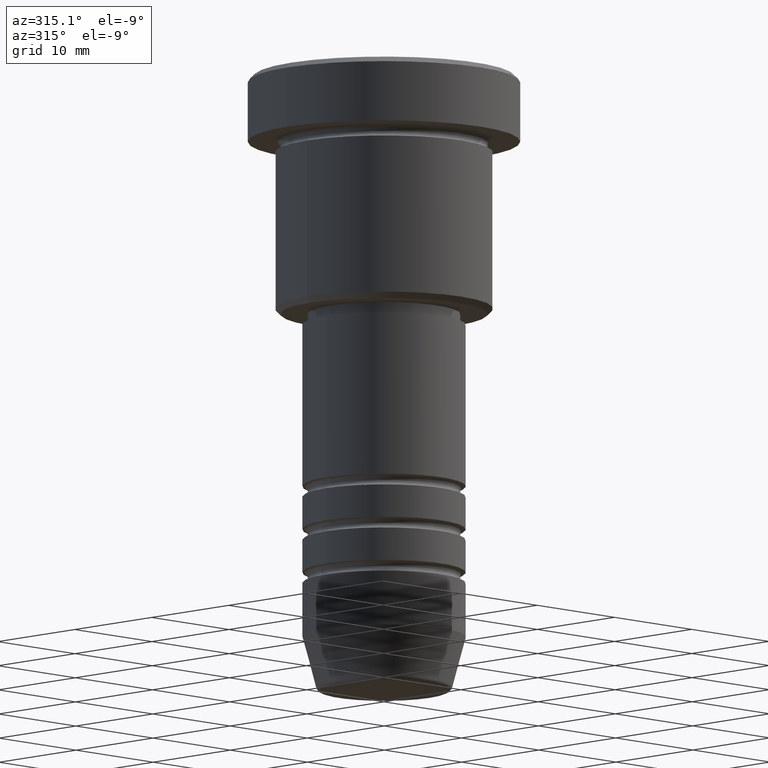
[diagram: clean part render]
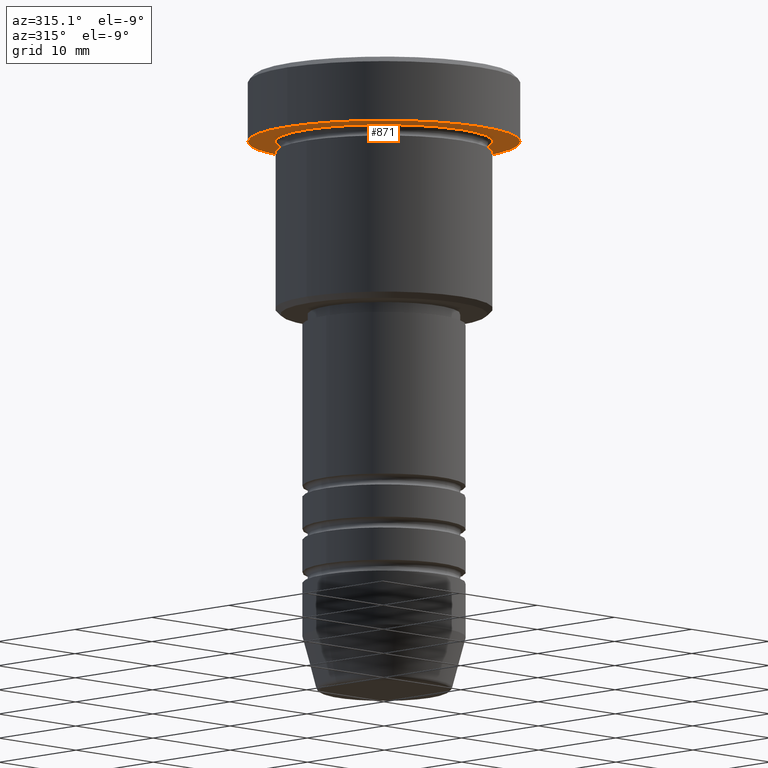
[diagram: same view with one face highlighted and labeled with its STEP entity id]
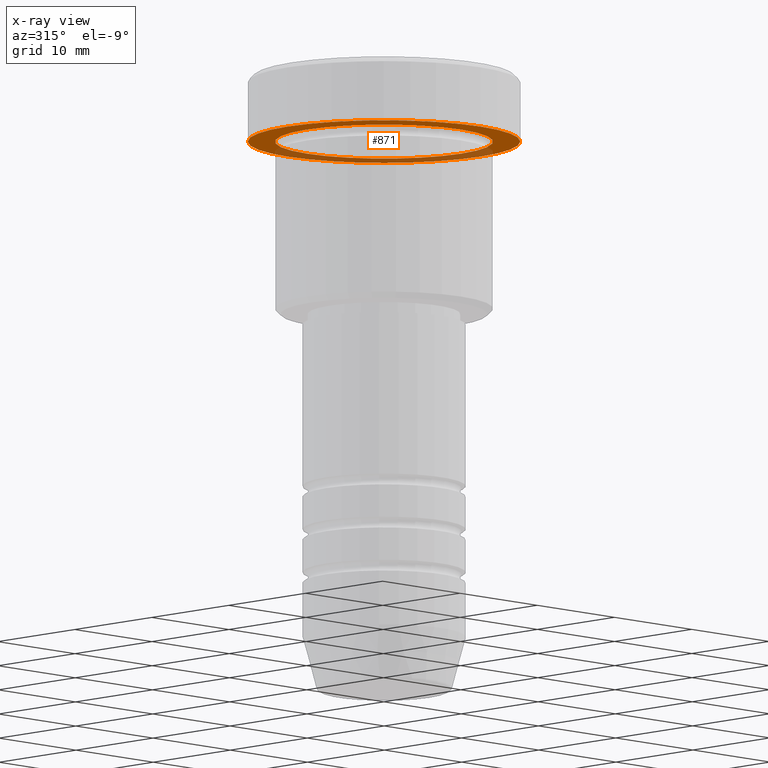
[diagram: x-ray of the same camera — body ghosted, the highlighted face saturated]
A machine part, auxiliary view. The second image highlights one B-rep face of the part: STEP entity #871.
The next image is the same camera in x-ray: the body ghosted, the highlighted face saturated — about 34% of this face is hidden behind the body in this view.
In plain terms, the highlighted planar face has unit normal (0, 0, -1).
Its self-contained STEP definition (entity closure, byte-faithful):
#28 = ORIENTED_EDGE ( 'NONE', *, *, #1066, .T. ) ;
#30 = DIRECTION ( 'NONE',  ( -0.000000000000000000, -0.000000000000000000, 1.000000000000000000 ) ) ;
#49 = CARTESIAN_POINT ( 'NONE',  ( 10.00000000000000000, 1.224646799147353256E-15, -5.999999999999996447 ) ) ;
#62 = CARTESIAN_POINT ( 'NONE',  ( 0.000000000000000000, 0.000000000000000000, -5.999999999999996447 ) ) ;
#68 = ORIENTED_EDGE ( 'NONE', *, *, #524, .T. ) ;
#71 = CARTESIAN_POINT ( 'NONE',  ( 0.000000000000000000, 0.000000000000000000, -5.999999999999996447 ) ) ;
#91 = VERTEX_POINT ( 'NONE', #108 ) ;
#108 = CARTESIAN_POINT ( 'NONE',  ( 12.50000000000000000, 0.000000000000000000, -5.999999999999996447 ) ) ;
#119 = AXIS2_PLACEMENT_3D ( 'NONE', #465, #1104, #554 ) ;
#151 = VERTEX_POINT ( 'NONE', #49 ) ;
#226 = DIRECTION ( 'NONE',  ( -0.000000000000000000, -0.000000000000000000, 1.000000000000000000 ) ) ;
#237 = CIRCLE ( 'NONE', #448, 12.50000000000000000 ) ;
#275 = PLANE ( 'NONE',  #119 ) ;
#284 = AXIS2_PLACEMENT_3D ( 'NONE', #875, #226, #880 ) ;
#365 = EDGE_CURVE ( 'NONE', #777, #91, #237, .T. ) ;
#366 = CARTESIAN_POINT ( 'NONE',  ( -12.50000000000000000, 1.530808498934191521E-15, -5.999999999999996447 ) ) ;
#448 = AXIS2_PLACEMENT_3D ( 'NONE', #71, #1067, #810 ) ;
#465 = CARTESIAN_POINT ( 'NONE',  ( 0.000000000000000000, 12.50000000000000000, -5.999999999999996447 ) ) ;
#476 = CIRCLE ( 'NONE', #1001, 10.00000000000000000 ) ;
#484 = DIRECTION ( 'NONE',  ( -1.000000000000000000, 0.000000000000000000, 0.000000000000000000 ) ) ;
#489 = ORIENTED_EDGE ( 'NONE', *, *, #365, .F. ) ;
#524 = EDGE_CURVE ( 'NONE', #151, #788, #812, .T. ) ;
#554 = DIRECTION ( 'NONE',  ( -1.000000000000000000, 0.000000000000000000, -0.000000000000000000 ) ) ;
#635 = FACE_OUTER_BOUND ( 'NONE', #704, .T. ) ;
#651 = AXIS2_PLACEMENT_3D ( 'NONE', #932, #30, #1089 ) ;
#704 = EDGE_LOOP ( 'NONE', ( #1059, #489 ) ) ;
#777 = VERTEX_POINT ( 'NONE', #366 ) ;
#788 = VERTEX_POINT ( 'NONE', #817 ) ;
#810 = DIRECTION ( 'NONE',  ( 1.000000000000000000, 0.000000000000000000, 0.000000000000000000 ) ) ;
#812 = CIRCLE ( 'NONE', #651, 10.00000000000000000 ) ;
#817 = CARTESIAN_POINT ( 'NONE',  ( -10.00000000000000000, 0.000000000000000000, -5.999999999999996447 ) ) ;
#824 = FACE_BOUND ( 'NONE', #906, .T. ) ;
#871 = ADVANCED_FACE ( 'NONE', ( #824, #635 ), #275, .T. ) ;
#875 = CARTESIAN_POINT ( 'NONE',  ( 0.000000000000000000, 0.000000000000000000, -5.999999999999996447 ) ) ;
#880 = DIRECTION ( 'NONE',  ( 1.000000000000000000, 0.000000000000000000, 0.000000000000000000 ) ) ;
#906 = EDGE_LOOP ( 'NONE', ( #28, #68 ) ) ;
#932 = CARTESIAN_POINT ( 'NONE',  ( 0.000000000000000000, 0.000000000000000000, -5.999999999999996447 ) ) ;
#1001 = AXIS2_PLACEMENT_3D ( 'NONE', #62, #1036, #484 ) ;
#1003 = CIRCLE ( 'NONE', #284, 12.50000000000000000 ) ;
#1036 = DIRECTION ( 'NONE',  ( -0.000000000000000000, -0.000000000000000000, 1.000000000000000000 ) ) ;
#1038 = EDGE_CURVE ( 'NONE', #91, #777, #1003, .T. ) ;
#1059 = ORIENTED_EDGE ( 'NONE', *, *, #1038, .F. ) ;
#1066 = EDGE_CURVE ( 'NONE', #788, #151, #476, .T. ) ;
#1067 = DIRECTION ( 'NONE',  ( -0.000000000000000000, -0.000000000000000000, 1.000000000000000000 ) ) ;
#1089 = DIRECTION ( 'NONE',  ( -1.000000000000000000, 0.000000000000000000, 0.000000000000000000 ) ) ;
#1104 = DIRECTION ( 'NONE',  ( 0.000000000000000000, 0.000000000000000000, -1.000000000000000000 ) ) ;